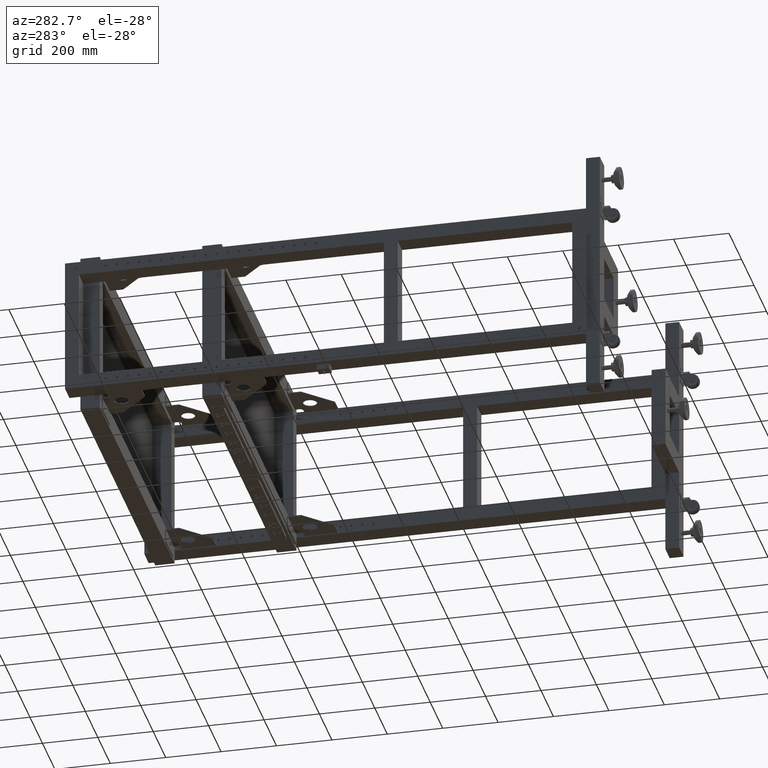
[diagram: clean part render]
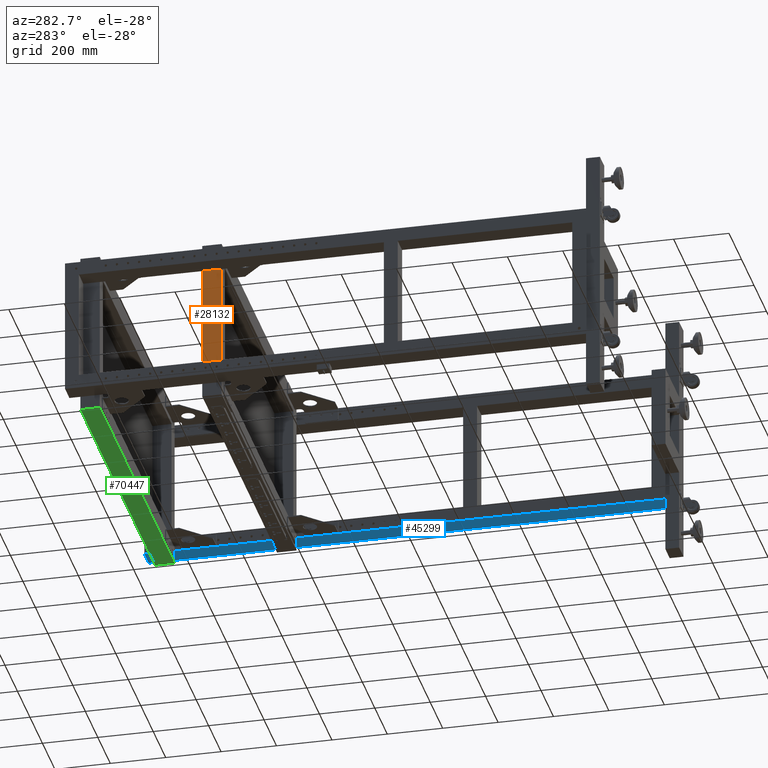
[diagram: same view with three faces highlighted in distinct colors, each labeled with its STEP entity id]
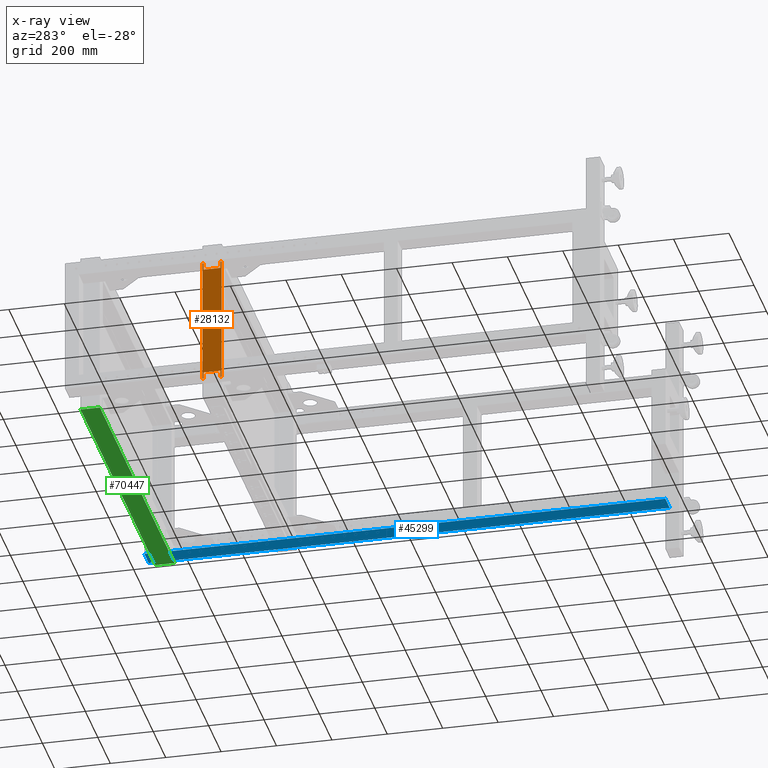
[diagram: x-ray of the same camera — body ghosted, the three highlighted faces saturated]
A machine part, auxiliary view with three faces highlighted in distinct colors.
The next image is the same camera in x-ray (body ghosted, the three faces saturated) — at least one of them is partly hidden behind the body in this view.
Their STEP definitions:

[orange] entity #28132 — the highlighted planar face has unit normal (1, 0, 0).
#245 = ORIENTED_EDGE ( 'NONE', *, *, #35354, .F. ) ;
#1427 = CARTESIAN_POINT ( 'NONE',  ( -1268.172487437185964, 556.9410804020109254, 230.0000000000001137 ) ) ;
#1533 = CARTESIAN_POINT ( 'NONE',  ( -1268.172487437185964, 491.9410804020124033, -230.0000000000001137 ) ) ;
#1697 = CARTESIAN_POINT ( 'NONE',  ( -1268.172487437185964, 551.9410804020124033, -204.9999999999998863 ) ) ;
#2736 = DIRECTION ( 'NONE',  ( 1.000000000000000000, 1.000000000000000078E-15, 2.999999999999999900E-30 ) ) ;
#3047 = ORIENTED_EDGE ( 'NONE', *, *, #63556, .T. ) ;
#3587 = VERTEX_POINT ( 'NONE', #1533 ) ;
#4937 = VECTOR ( 'NONE', #70677, 1000.000000000000000 ) ;
#6671 = LINE ( 'NONE', #29839, #61045 ) ;
#7580 = CARTESIAN_POINT ( 'NONE',  ( -1268.172487437185964, 551.9410804020110390, 205.0000000000000853 ) ) ;
#7642 = PLANE ( 'NONE',  #51854 ) ;
#8047 = CARTESIAN_POINT ( 'NONE',  ( -1268.172487437185964, 486.9410804020124033, -230.0000000000001137 ) ) ;
#9195 = EDGE_CURVE ( 'NONE', #22069, #51871, #12847, .T. ) ;
#12839 = LINE ( 'NONE', #37645, #22033 ) ;
#12847 = LINE ( 'NONE', #37651, #68073 ) ;
#12986 = VECTOR ( 'NONE', #65368, 1000.000000000000000 ) ;
#15508 = EDGE_CURVE ( 'NONE', #51871, #15933, #75814, .T. ) ;
#15660 = CARTESIAN_POINT ( 'NONE',  ( -1268.172487437185964, 486.9410804020109822, 229.9999999999998863 ) ) ;
#15769 = EDGE_CURVE ( 'NONE', #15933, #38113, #50449, .T. ) ;
#15933 = VERTEX_POINT ( 'NONE', #20348 ) ;
#16588 = ORIENTED_EDGE ( 'NONE', *, *, #55367, .F. ) ;
#16936 = CARTESIAN_POINT ( 'NONE',  ( -1268.172487437185964, 551.9410804020124033, -229.9999999999998863 ) ) ;
#17858 = CARTESIAN_POINT ( 'NONE',  ( -1268.172487437185964, 486.9410804020109822, 229.9999999999998863 ) ) ;
#18908 = VECTOR ( 'NONE', #21328, 1000.000000000000000 ) ;
#18979 = CARTESIAN_POINT ( 'NONE',  ( -1268.172487437185964, 556.9410804020124033, -229.9999999999998863 ) ) ;
#19785 = DIRECTION ( 'NONE',  ( 0.000000000000000000, -2.999999999999999839E-15, 1.000000000000000000 ) ) ;
#20348 = CARTESIAN_POINT ( 'NONE',  ( -1268.172487437185964, 491.9410804020110390, 204.9999999999999147 ) ) ;
#21328 = DIRECTION ( 'NONE',  ( -1.000000000000000078E-15, 1.000000000000000000, 2.999999999999999839E-15 ) ) ;
#21753 = ORIENTED_EDGE ( 'NONE', *, *, #15769, .F. ) ;
#22033 = VECTOR ( 'NONE', #62431, 1000.000000000000000 ) ;
#22069 = VERTEX_POINT ( 'NONE', #52116 ) ;
#23858 = CARTESIAN_POINT ( 'NONE',  ( -1268.172487437185964, 486.9410804020109822, 229.9999999999998863 ) ) ;
#25368 = VECTOR ( 'NONE', #26628, 1000.000000000000000 ) ;
#26605 = EDGE_CURVE ( 'NONE', #54717, #37897, #63790, .T. ) ;
#26628 = DIRECTION ( 'NONE',  ( 1.000000000000000078E-15, -1.000000000000000000, -2.999999999999999839E-15 ) ) ;
#28132 = ADVANCED_FACE ( 'NONE', ( #64090 ), #7642, .F. ) ;
#28489 = EDGE_CURVE ( 'NONE', #39786, #66833, #12839, .T. ) ;
#28867 = EDGE_CURVE ( 'NONE', #39786, #3587, #6671, .T. ) ;
#29839 = CARTESIAN_POINT ( 'NONE',  ( -1268.172487437185964, 486.9410804020124033, -230.0000000000001137 ) ) ;
#31780 = CARTESIAN_POINT ( 'NONE',  ( -1268.172487437185964, 486.9410804020124033, -230.0000000000001137 ) ) ;
#32818 = DIRECTION ( 'NONE',  ( -1.000000000000000078E-15, 1.000000000000000000, 2.999999999999999839E-15 ) ) ;
#33463 = CARTESIAN_POINT ( 'NONE',  ( -1268.172487437185964, 551.9410804020124033, -237.8650255704258427 ) ) ;
#34592 = VECTOR ( 'NONE', #49270, 1000.000000000000000 ) ;
#35354 = EDGE_CURVE ( 'NONE', #65795, #79894, #74656, .T. ) ;
#35780 = ORIENTED_EDGE ( 'NONE', *, *, #50783, .F. ) ;
#36464 = ORIENTED_EDGE ( 'NONE', *, *, #26605, .F. ) ;
#37645 = CARTESIAN_POINT ( 'NONE',  ( -1268.172487437185964, 486.9410804020124033, -230.0000000000001137 ) ) ;
#37651 = CARTESIAN_POINT ( 'NONE',  ( -1268.172487437185964, 551.9410804020110390, 237.8650255704256153 ) ) ;
#37897 = VERTEX_POINT ( 'NONE', #1697 ) ;
#38113 = VERTEX_POINT ( 'NONE', #41912 ) ;
#39674 = CARTESIAN_POINT ( 'NONE',  ( -1268.172487437185964, 491.9410804020122896, -205.0000000000000853 ) ) ;
#39786 = VERTEX_POINT ( 'NONE', #57985 ) ;
#41912 = CARTESIAN_POINT ( 'NONE',  ( -1268.172487437185964, 491.9410804020110390, 229.9999999999999147 ) ) ;
#43412 = VERTEX_POINT ( 'NONE', #16936 ) ;
#43549 = EDGE_LOOP ( 'NONE', ( #73967, #35780, #36464, #16588, #51045, #59371, #3047, #21753, #58414, #48221, #61951, #245 ) ) ;
#47659 = VECTOR ( 'NONE', #73671, 1000.000000000000000 ) ;
#48221 = ORIENTED_EDGE ( 'NONE', *, *, #9195, .F. ) ;
#49270 = DIRECTION ( 'NONE',  ( 1.319581717850421866E-31, -3.131958171785041999E-15, 1.000000000000000000 ) ) ;
#50059 = LINE ( 'NONE', #31780, #47659 ) ;
#50449 = LINE ( 'NONE', #63028, #34592 ) ;
#50783 = EDGE_CURVE ( 'NONE', #37897, #43412, #52521, .T. ) ;
#51045 = ORIENTED_EDGE ( 'NONE', *, *, #28867, .F. ) ;
#51854 = AXIS2_PLACEMENT_3D ( 'NONE', #8047, #2736, #32818 ) ;
#51871 = VERTEX_POINT ( 'NONE', #69267 ) ;
#52116 = CARTESIAN_POINT ( 'NONE',  ( -1268.172487437185964, 551.9410804020110390, 230.0000000000000853 ) ) ;
#52521 = LINE ( 'NONE', #33463, #54486 ) ;
#53348 = DIRECTION ( 'NONE',  ( 0.000000000000000000, 2.999999999999999839E-15, -1.000000000000000000 ) ) ;
#53584 = EDGE_CURVE ( 'NONE', #43412, #65795, #50059, .T. ) ;
#54305 = DIRECTION ( 'NONE',  ( 0.000000000000000000, 2.999999999999999839E-15, -1.000000000000000000 ) ) ;
#54486 = VECTOR ( 'NONE', #53348, 1000.000000000000000 ) ;
#54717 = VERTEX_POINT ( 'NONE', #39674 ) ;
#55237 = DIRECTION ( 'NONE',  ( -1.000000000000000078E-15, 1.000000000000000000, 2.999999999999999839E-15 ) ) ;
#55367 = EDGE_CURVE ( 'NONE', #3587, #54717, #58877, .T. ) ;
#55417 = DIRECTION ( 'NONE',  ( -1.000000000000000078E-15, 1.000000000000000000, 2.999999999999999839E-15 ) ) ;
#57675 = CARTESIAN_POINT ( 'NONE',  ( -1268.172487437185964, 551.9410804020124033, -204.9999999999998863 ) ) ;
#57985 = CARTESIAN_POINT ( 'NONE',  ( -1268.172487437185964, 486.9410804020124033, -230.0000000000001137 ) ) ;
#58414 = ORIENTED_EDGE ( 'NONE', *, *, #15508, .F. ) ;
#58877 = LINE ( 'NONE', #60073, #12986 ) ;
#59371 = ORIENTED_EDGE ( 'NONE', *, *, #28489, .T. ) ;
#59930 = LINE ( 'NONE', #15660, #18908 ) ;
#60073 = CARTESIAN_POINT ( 'NONE',  ( -1268.172487437185964, 491.9410804020124033, -237.8650255704260701 ) ) ;
#61045 = VECTOR ( 'NONE', #55417, 1000.000000000000000 ) ;
#61951 = ORIENTED_EDGE ( 'NONE', *, *, #78903, .T. ) ;
#62151 = VECTOR ( 'NONE', #19785, 1000.000000000000000 ) ;
#62431 = DIRECTION ( 'NONE',  ( 0.000000000000000000, -2.999999999999999839E-15, 1.000000000000000000 ) ) ;
#62736 = CARTESIAN_POINT ( 'NONE',  ( -1268.172487437185964, 556.9410804020124033, -229.9999999999998863 ) ) ;
#63028 = CARTESIAN_POINT ( 'NONE',  ( -1268.172487437185964, 491.9410804020109822, 237.8650255704254448 ) ) ;
#63556 = EDGE_CURVE ( 'NONE', #66833, #38113, #59930, .T. ) ;
#63790 = LINE ( 'NONE', #57675, #4937 ) ;
#64090 = FACE_OUTER_BOUND ( 'NONE', #43549, .T. ) ;
#65368 = DIRECTION ( 'NONE',  ( -1.319581717850421866E-31, -2.868041828214957678E-15, 1.000000000000000000 ) ) ;
#65795 = VERTEX_POINT ( 'NONE', #62736 ) ;
#66833 = VERTEX_POINT ( 'NONE', #23858 ) ;
#68073 = VECTOR ( 'NONE', #54305, 1000.000000000000000 ) ;
#69267 = CARTESIAN_POINT ( 'NONE',  ( -1268.172487437185964, 551.9410804020110390, 205.0000000000000853 ) ) ;
#70677 = DIRECTION ( 'NONE',  ( -1.000000000000000078E-15, 1.000000000000000000, 2.999999999999999839E-15 ) ) ;
#71658 = VECTOR ( 'NONE', #55237, 1000.000000000000000 ) ;
#73671 = DIRECTION ( 'NONE',  ( -1.000000000000000078E-15, 1.000000000000000000, 2.999999999999999839E-15 ) ) ;
#73967 = ORIENTED_EDGE ( 'NONE', *, *, #53584, .F. ) ;
#74656 = LINE ( 'NONE', #18979, #62151 ) ;
#75142 = LINE ( 'NONE', #17858, #71658 ) ;
#75814 = LINE ( 'NONE', #7580, #25368 ) ;
#78903 = EDGE_CURVE ( 'NONE', #22069, #79894, #75142, .T. ) ;
#79894 = VERTEX_POINT ( 'NONE', #1427 ) ;

[blue] entity #45299 — the highlighted planar face has unit normal (-0, 0, -1).
#1353 = LINE ( 'NONE', #26122, #58449 ) ;
#2090 = VERTEX_POINT ( 'NONE', #33665 ) ;
#2843 = DIRECTION ( 'NONE',  ( -2.251766706479394348E-16, 1.000000000000000000, 0.000000000000000000 ) ) ;
#4657 = VERTEX_POINT ( 'NONE', #46619 ) ;
#6935 = PLANE ( 'NONE',  #66855 ) ;
#11956 = EDGE_CURVE ( 'NONE', #50148, #13290, #14702, .T. ) ;
#12035 = ORIENTED_EDGE ( 'NONE', *, *, #73099, .T. ) ;
#12621 = CARTESIAN_POINT ( 'NONE',  ( 1.827512562815325481, -844.5589195979887336, -250.0000000000000000 ) ) ;
#13029 = DIRECTION ( 'NONE',  ( -1.000000000000000000, -2.251766706479394348E-16, 0.000000000000000000 ) ) ;
#13290 = VERTEX_POINT ( 'NONE', #55310 ) ;
#13620 = ORIENTED_EDGE ( 'NONE', *, *, #46655, .T. ) ;
#14702 = LINE ( 'NONE', #19991, #25597 ) ;
#15426 = VECTOR ( 'NONE', #67855, 1000.000000000000000 ) ;
#17279 = ORIENTED_EDGE ( 'NONE', *, *, #46677, .F. ) ;
#19991 = CARTESIAN_POINT ( 'NONE',  ( -68.17248743718474202, -844.5589195979887336, -250.0000000000000000 ) ) ;
#20017 = DIRECTION ( 'NONE',  ( 1.000000000000000000, 2.251766706479394348E-16, 0.000000000000000000 ) ) ;
#20250 = ORIENTED_EDGE ( 'NONE', *, *, #60504, .F. ) ;
#23453 = CARTESIAN_POINT ( 'NONE',  ( -68.18853048807626749, 986.4410804020138812, -250.0000000000000000 ) ) ;
#24730 = CARTESIAN_POINT ( 'NONE',  ( -68.17248743718363357, -844.5589195979887336, -250.0000000000000000 ) ) ;
#25597 = VECTOR ( 'NONE', #63079, 1000.000000000000000 ) ;
#26080 = VERTEX_POINT ( 'NONE', #69188 ) ;
#26122 = CARTESIAN_POINT ( 'NONE',  ( 1.827512562815325481, -844.5589195979887336, -250.0000000000000000 ) ) ;
#30420 = LINE ( 'NONE', #24730, #65341 ) ;
#32368 = CARTESIAN_POINT ( 'NONE',  ( -68.18853048807626749, 926.9410804020142223, -250.0000000000000000 ) ) ;
#33665 = CARTESIAN_POINT ( 'NONE',  ( 1.827512562815325481, -844.5589195979887336, -250.0000000000000000 ) ) ;
#34281 = VECTOR ( 'NONE', #53638, 1000.000000000000000 ) ;
#34296 = VECTOR ( 'NONE', #47825, 1000.000000000000000 ) ;
#34507 = ORIENTED_EDGE ( 'NONE', *, *, #43585, .T. ) ;
#37422 = DIRECTION ( 'NONE',  ( -0.000000000000000000, 0.000000000000000000, -1.000000000000000000 ) ) ;
#37772 = CARTESIAN_POINT ( 'NONE',  ( 1.827512562814881392, 919.4410804020138812, -250.0000000000000000 ) ) ;
#39829 = LINE ( 'NONE', #58524, #47385 ) ;
#40240 = DIRECTION ( 'NONE',  ( -2.251766706479394348E-16, 1.000000000000000000, 0.000000000000000000 ) ) ;
#41023 = CARTESIAN_POINT ( 'NONE',  ( -68.17248743718407411, 986.4410804020111527, -250.0000000000000000 ) ) ;
#41438 = LINE ( 'NONE', #41023, #52541 ) ;
#43585 = EDGE_CURVE ( 'NONE', #63376, #49469, #51703, .T. ) ;
#44212 = VERTEX_POINT ( 'NONE', #73118 ) ;
#44579 = EDGE_CURVE ( 'NONE', #63376, #26080, #68138, .T. ) ;
#44758 = CARTESIAN_POINT ( 'NONE',  ( -68.17248743718407411, 926.9410804020142223, -250.0000000000000000 ) ) ;
#45299 = ADVANCED_FACE ( 'NONE', ( #76375 ), #6935, .T. ) ;
#45629 = DIRECTION ( 'NONE',  ( 1.000000000000000000, 2.251766706479394348E-16, 0.000000000000000000 ) ) ;
#46619 = CARTESIAN_POINT ( 'NONE',  ( -68.17248743718407411, 1036.441080402011039, -250.0000000000000000 ) ) ;
#46655 = EDGE_CURVE ( 'NONE', #44212, #4657, #41438, .T. ) ;
#46677 = EDGE_CURVE ( 'NONE', #2090, #49620, #39829, .T. ) ;
#47385 = VECTOR ( 'NONE', #2843, 1000.000000000000000 ) ;
#47825 = DIRECTION ( 'NONE',  ( 1.225176670647939315E-15, -1.000000000000000000, -0.000000000000000000 ) ) ;
#47960 = CARTESIAN_POINT ( 'NONE',  ( 1.827512562815769570, 1036.441080402011039, -250.0000000000000000 ) ) ;
#49116 = DIRECTION ( 'NONE',  ( 2.251766706479394348E-16, -1.000000000000000000, 0.000000000000000000 ) ) ;
#49469 = VERTEX_POINT ( 'NONE', #44758 ) ;
#49620 = VERTEX_POINT ( 'NONE', #47960 ) ;
#50148 = VERTEX_POINT ( 'NONE', #55150 ) ;
#50749 = LINE ( 'NONE', #37772, #15426 ) ;
#51703 = LINE ( 'NONE', #76494, #52343 ) ;
#52343 = VECTOR ( 'NONE', #45629, 1000.000000000000000 ) ;
#52541 = VECTOR ( 'NONE', #40240, 1000.000000000000000 ) ;
#52900 = EDGE_LOOP ( 'NONE', ( #17279, #77853, #62474, #64572, #66786, #34507, #20250, #13620, #12035 ) ) ;
#53638 = DIRECTION ( 'NONE',  ( 1.000000000000000000, 2.251766706479394348E-16, 0.000000000000000000 ) ) ;
#55150 = CARTESIAN_POINT ( 'NONE',  ( -68.17248743718474202, -844.5589195979887336, -250.0000000000000000 ) ) ;
#55310 = CARTESIAN_POINT ( 'NONE',  ( -68.17248743718518256, 919.4410804020137675, -250.0000000000000000 ) ) ;
#58449 = VECTOR ( 'NONE', #20017, 1000.000000000000000 ) ;
#58524 = CARTESIAN_POINT ( 'NONE',  ( 1.827512562815325481, -844.5589195979887336, -250.0000000000000000 ) ) ;
#60504 = EDGE_CURVE ( 'NONE', #44212, #49469, #30420, .T. ) ;
#62474 = ORIENTED_EDGE ( 'NONE', *, *, #11956, .T. ) ;
#63079 = DIRECTION ( 'NONE',  ( -2.251766706479394348E-16, 1.000000000000000000, 0.000000000000000000 ) ) ;
#63376 = VERTEX_POINT ( 'NONE', #32368 ) ;
#64572 = ORIENTED_EDGE ( 'NONE', *, *, #66541, .F. ) ;
#65063 = LINE ( 'NONE', #77232, #34281 ) ;
#65341 = VECTOR ( 'NONE', #49116, 1000.000000000000000 ) ;
#66541 = EDGE_CURVE ( 'NONE', #26080, #13290, #50749, .T. ) ;
#66786 = ORIENTED_EDGE ( 'NONE', *, *, #44579, .F. ) ;
#66855 = AXIS2_PLACEMENT_3D ( 'NONE', #12621, #37422, #13029 ) ;
#67855 = DIRECTION ( 'NONE',  ( 1.000000000000000000, 1.810846149024760977E-15, 0.000000000000000000 ) ) ;
#68138 = LINE ( 'NONE', #23453, #34296 ) ;
#69188 = CARTESIAN_POINT ( 'NONE',  ( -68.18853048807626749, 919.4410804020137675, -250.0000000000000000 ) ) ;
#73099 = EDGE_CURVE ( 'NONE', #4657, #49620, #65063, .T. ) ;
#73118 = CARTESIAN_POINT ( 'NONE',  ( -68.17248743718407411, 996.9410804020129717, -250.0000000000000000 ) ) ;
#76375 = FACE_OUTER_BOUND ( 'NONE', #52900, .T. ) ;
#76494 = CARTESIAN_POINT ( 'NONE',  ( 1.827512562814881392, 926.9410804020142223, -250.0000000000000000 ) ) ;
#77022 = EDGE_CURVE ( 'NONE', #50148, #2090, #1353, .T. ) ;
#77232 = CARTESIAN_POINT ( 'NONE',  ( 1.827512562815769570, 1036.441080402011039, -250.0000000000000000 ) ) ;
#77853 = ORIENTED_EDGE ( 'NONE', *, *, #77022, .F. ) ;

[green] entity #70447 — the highlighted planar face has unit normal (0, -0, 1).
#308 = PLANE ( 'NONE',  #22194 ) ;
#1888 = CARTESIAN_POINT ( 'NONE',  ( -70.17248743718407411, 926.9410804020144496, -299.9999999999991473 ) ) ;
#4060 = EDGE_CURVE ( 'NONE', #48742, #57986, #73601, .T. ) ;
#7170 = LINE ( 'NONE', #13267, #15104 ) ;
#10446 = VERTEX_POINT ( 'NONE', #34996 ) ;
#10635 = DIRECTION ( 'NONE',  ( 2.251766706479394348E-16, -1.000000000000000000, -3.603491776919587486E-15 ) ) ;
#10639 = VECTOR ( 'NONE', #10635, 1000.000000000000000 ) ;
#10791 = EDGE_CURVE ( 'NONE', #10446, #41218, #14206, .T. ) ;
#13180 = CARTESIAN_POINT ( 'NONE',  ( -70.17248743718407411, 996.9410804020142223, -299.9999999999988631 ) ) ;
#13267 = CARTESIAN_POINT ( 'NONE',  ( 159.8275125628159117, 926.9410804020144496, -299.9999999999991473 ) ) ;
#14206 = LINE ( 'NONE', #63784, #72166 ) ;
#14444 = VECTOR ( 'NONE', #51457, 1000.000000000000000 ) ;
#15104 = VECTOR ( 'NONE', #25858, 1000.000000000000000 ) ;
#18982 = DIRECTION ( 'NONE',  ( -2.251766706479394348E-16, 1.000000000000000000, 3.603491776919587486E-15 ) ) ;
#20983 = CARTESIAN_POINT ( 'NONE',  ( 159.8275125628159117, 996.9410804020142223, -299.9999999999988631 ) ) ;
#22194 = AXIS2_PLACEMENT_3D ( 'NONE', #25086, #74660, #18982 ) ;
#25086 = CARTESIAN_POINT ( 'NONE',  ( 159.8275125628159117, 926.9410804020144496, -299.9999999999991473 ) ) ;
#25858 = DIRECTION ( 'NONE',  ( -1.000000000000000000, -2.251766706479394348E-16, 0.000000000000000000 ) ) ;
#27154 = ORIENTED_EDGE ( 'NONE', *, *, #63435, .T. ) ;
#31202 = FACE_OUTER_BOUND ( 'NONE', #33616, .T. ) ;
#33313 = CARTESIAN_POINT ( 'NONE',  ( -1266.172487437185964, 926.9410804020142223, -299.9999999999991473 ) ) ;
#33616 = EDGE_LOOP ( 'NONE', ( #27154, #76055, #45446, #69010 ) ) ;
#34996 = CARTESIAN_POINT ( 'NONE',  ( -1266.172487437185964, 996.9410804020139949, -299.9999999999988631 ) ) ;
#41218 = VERTEX_POINT ( 'NONE', #33313 ) ;
#41521 = CARTESIAN_POINT ( 'NONE',  ( -70.17248743718407411, 926.9410804020144496, -299.9999999999991473 ) ) ;
#45446 = ORIENTED_EDGE ( 'NONE', *, *, #70527, .F. ) ;
#48742 = VERTEX_POINT ( 'NONE', #13180 ) ;
#51457 = DIRECTION ( 'NONE',  ( -1.000000000000000000, -2.251766706479394348E-16, 0.000000000000000000 ) ) ;
#53043 = LINE ( 'NONE', #20983, #14444 ) ;
#57986 = VERTEX_POINT ( 'NONE', #1888 ) ;
#63435 = EDGE_CURVE ( 'NONE', #57986, #41218, #7170, .T. ) ;
#63784 = CARTESIAN_POINT ( 'NONE',  ( -1266.172487437185964, 926.9410804020142223, -299.9999999999991473 ) ) ;
#64986 = DIRECTION ( 'NONE',  ( 0.000000000000000000, -1.000000000000000000, -3.603491776919587486E-15 ) ) ;
#69010 = ORIENTED_EDGE ( 'NONE', *, *, #4060, .T. ) ;
#70447 = ADVANCED_FACE ( 'NONE', ( #31202 ), #308, .F. ) ;
#70527 = EDGE_CURVE ( 'NONE', #48742, #10446, #53043, .T. ) ;
#72166 = VECTOR ( 'NONE', #64986, 1000.000000000000000 ) ;
#73601 = LINE ( 'NONE', #41521, #10639 ) ;
#74660 = DIRECTION ( 'NONE',  ( 8.114222810339800662E-31, -3.603491776919587486E-15, 1.000000000000000000 ) ) ;
#76055 = ORIENTED_EDGE ( 'NONE', *, *, #10791, .F. ) ;